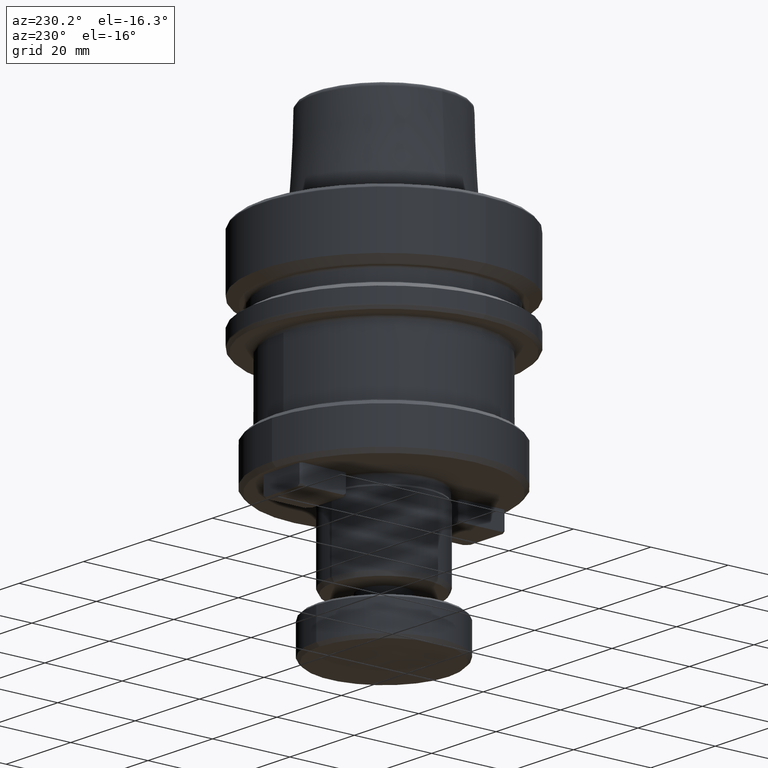
[diagram: clean part render]
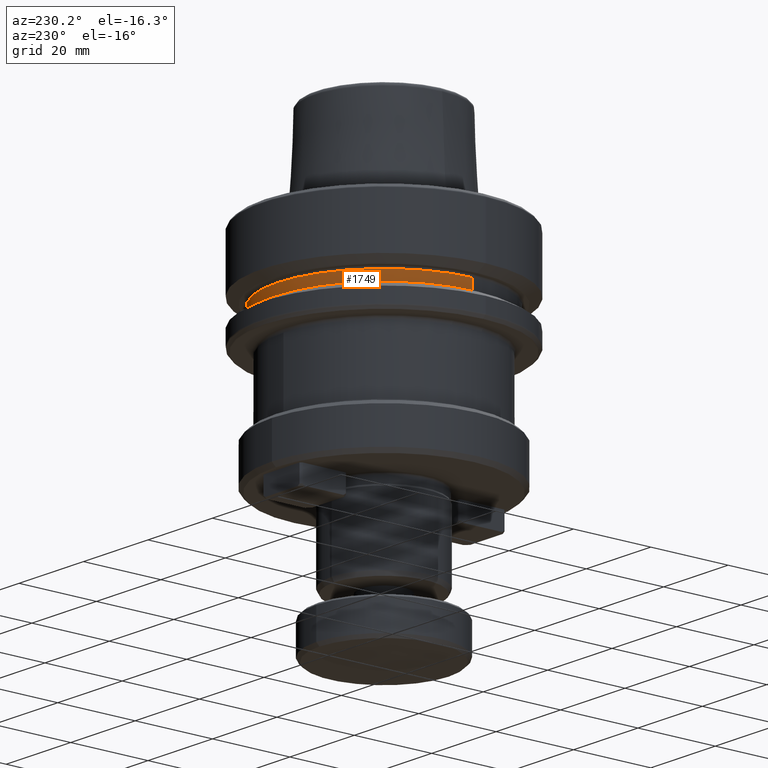
[diagram: same view with one face highlighted and labeled with its STEP entity id]
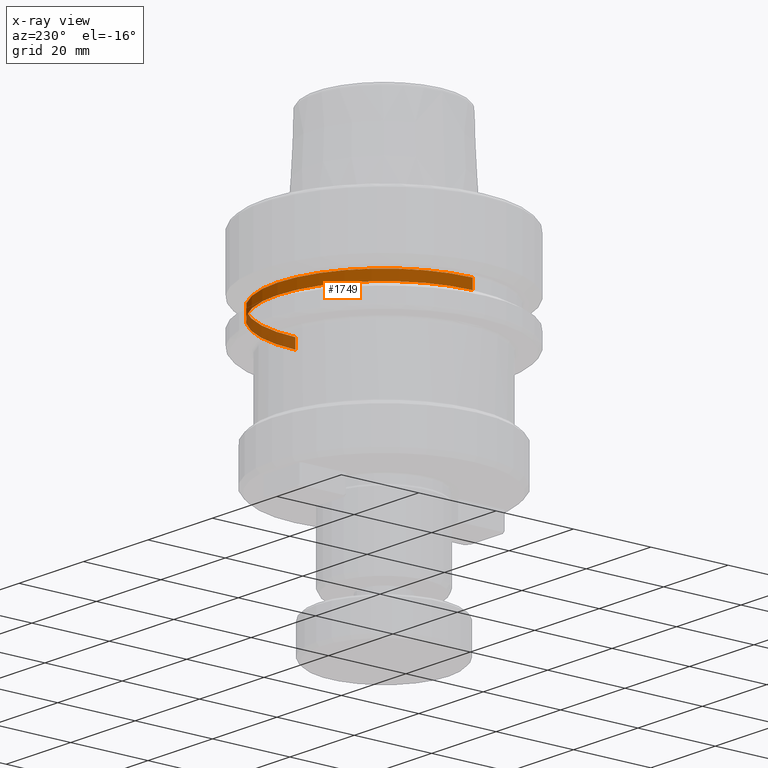
[diagram: x-ray of the same camera — body ghosted, the highlighted face saturated]
A machine part, auxiliary view. The second image highlights one B-rep face of the part: STEP entity #1749.
The next image is the same camera in x-ray: the body ghosted, the highlighted face saturated — about 18% of this face is hidden behind the body in this view.
In plain terms, the highlighted cylindrical surface (partial cylindrical patch) has radius 27.5 mm, axis along (-0, -0, 1).
Its self-contained STEP definition (entity closure, byte-faithful):
#98 = DIRECTION ( 'NONE',  ( -0.0000000000000000000, -0.0000000000000000000, 1.000000000000000000 ) ) ;
#161 = VECTOR ( 'NONE', #2977, 1000.000000000000000 ) ;
#196 = CIRCLE ( 'NONE', #596, 27.50000000000000000 ) ;
#345 = EDGE_LOOP ( 'NONE', ( #1256, #1965, #945, #990 ) ) ;
#409 = VECTOR ( 'NONE', #1580, 1000.000000000000000 ) ;
#485 = CARTESIAN_POINT ( 'NONE',  ( -25.59736664747105900, 4.065099942295095300, 87.94877588520934400 ) ) ;
#571 = DIRECTION ( 'NONE',  ( -0.0000000000000000000, -0.0000000000000000000, 1.000000000000000000 ) ) ;
#596 = AXIS2_PLACEMENT_3D ( 'NONE', #2059, #571, #2302 ) ;
#737 = DIRECTION ( 'NONE',  ( -0.0000000000000000000, -0.0000000000000000000, 1.000000000000000000 ) ) ;
#819 = LINE ( 'NONE', #485, #161 ) ;
#836 = EDGE_CURVE ( 'NONE', #1142, #2850, #1123, .T. ) ;
#942 = EDGE_CURVE ( 'NONE', #2895, #1627, #819, .T. ) ;
#945 = ORIENTED_EDGE ( 'NONE', *, *, #1919, .F. ) ;
#990 = ORIENTED_EDGE ( 'NONE', *, *, #836, .F. ) ;
#1078 = CARTESIAN_POINT ( 'NONE',  ( 1.902633352528940900, 4.065099942295091800, 87.94877588520934400 ) ) ;
#1119 = CYLINDRICAL_SURFACE ( 'NONE', #2408, 27.50000000000000000 ) ;
#1123 = LINE ( 'NONE', #1322, #409 ) ;
#1142 = VERTEX_POINT ( 'NONE', #1348 ) ;
#1256 = ORIENTED_EDGE ( 'NONE', *, *, #1674, .T. ) ;
#1322 = CARTESIAN_POINT ( 'NONE',  ( 29.40263335252894100, 4.065099942295091800, 87.94877588520934400 ) ) ;
#1348 = CARTESIAN_POINT ( 'NONE',  ( 29.40263335252894100, 4.065099942295091800, 34.91820766701715700 ) ) ;
#1466 = CIRCLE ( 'NONE', #2759, 27.50000000000000000 ) ;
#1571 = DIRECTION ( 'NONE',  ( 1.000000000000000000, 0.0000000000000000000, 0.0000000000000000000 ) ) ;
#1580 = DIRECTION ( 'NONE',  ( -0.0000000000000000000, -0.0000000000000000000, 1.000000000000000000 ) ) ;
#1627 = VERTEX_POINT ( 'NONE', #2009 ) ;
#1674 = EDGE_CURVE ( 'NONE', #1142, #2895, #196, .T. ) ;
#1749 = ADVANCED_FACE ( 'NONE', ( #2526 ), #1119, .T. ) ;
#1919 = EDGE_CURVE ( 'NONE', #2850, #1627, #1466, .T. ) ;
#1965 = ORIENTED_EDGE ( 'NONE', *, *, #942, .T. ) ;
#2009 = CARTESIAN_POINT ( 'NONE',  ( -25.59736664747105900, 4.065099942295095300, 37.51820766701714400 ) ) ;
#2059 = CARTESIAN_POINT ( 'NONE',  ( 1.902633352528940900, 4.065099942295091800, 34.91820766701715700 ) ) ;
#2098 = CARTESIAN_POINT ( 'NONE',  ( 29.40263335252894100, 4.065099942295091800, 37.51820766701714400 ) ) ;
#2231 = CARTESIAN_POINT ( 'NONE',  ( 1.902633352528940900, 4.065099942295091800, 37.51820766701714400 ) ) ;
#2302 = DIRECTION ( 'NONE',  ( 1.000000000000000000, 0.0000000000000000000, 0.0000000000000000000 ) ) ;
#2408 = AXIS2_PLACEMENT_3D ( 'NONE', #1078, #98, #1571 ) ;
#2469 = DIRECTION ( 'NONE',  ( 1.000000000000000000, 0.0000000000000000000, 0.0000000000000000000 ) ) ;
#2526 = FACE_OUTER_BOUND ( 'NONE', #345, .T. ) ;
#2606 = CARTESIAN_POINT ( 'NONE',  ( -25.59736664747105900, 4.065099942295095300, 34.91820766701715700 ) ) ;
#2759 = AXIS2_PLACEMENT_3D ( 'NONE', #2231, #737, #2469 ) ;
#2850 = VERTEX_POINT ( 'NONE', #2098 ) ;
#2895 = VERTEX_POINT ( 'NONE', #2606 ) ;
#2977 = DIRECTION ( 'NONE',  ( -0.0000000000000000000, -0.0000000000000000000, 1.000000000000000000 ) ) ;